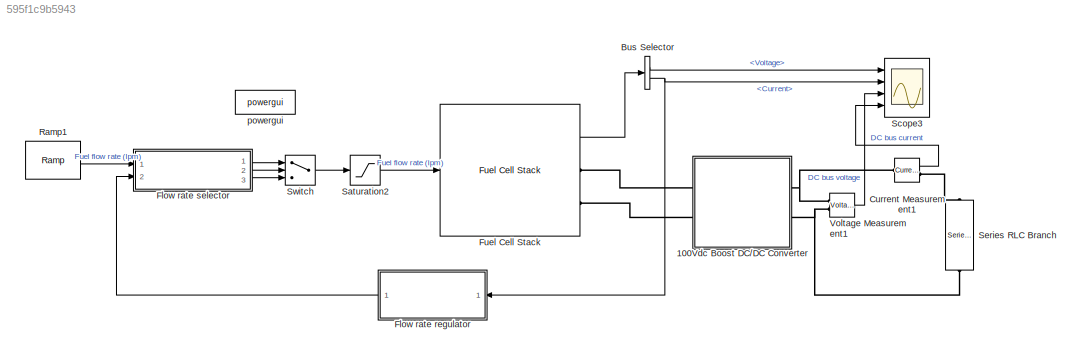
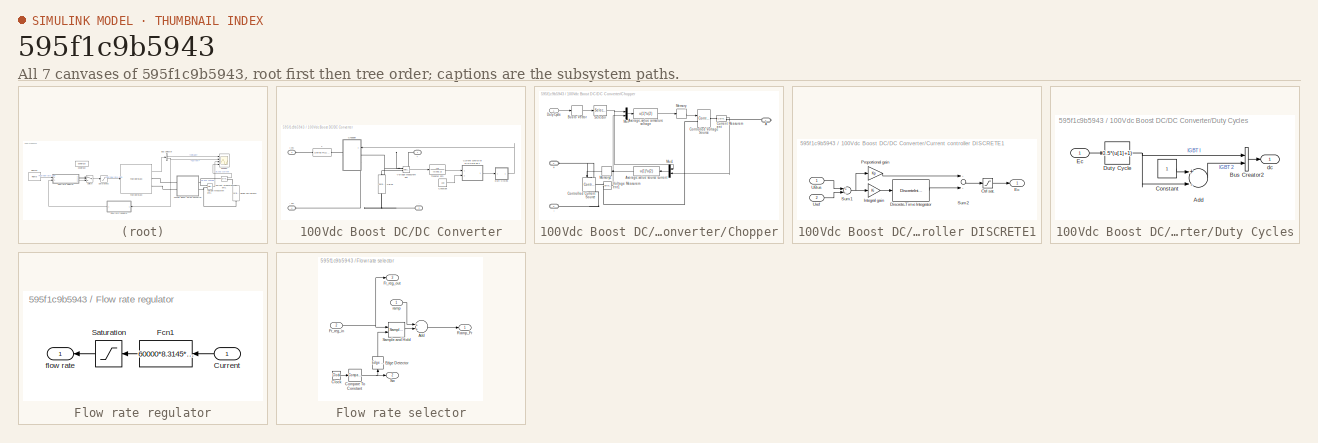
[diagram: thumbnail index - all 7 canvases of the model, root first then tree order]
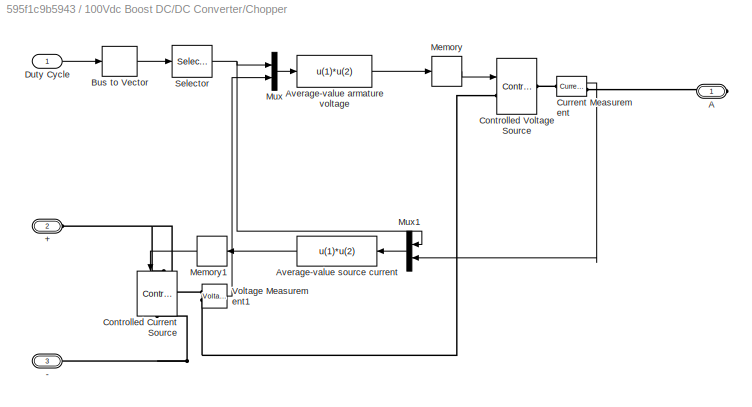
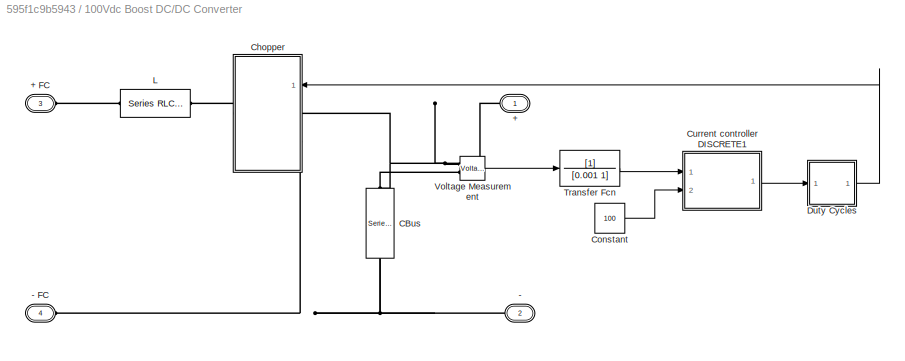
MODEL slx_595f1c9b5943
KIND model
CONFIG AbsTol = auto
CONFIG EnableMultiTasking = off
CONFIG FixedStep = auto
CONFIG MaxStep = auto
CONFIG MinStep = auto
CONFIG RelTol = 1e-3
CONFIG SampleTimeConstraint = Unconstrained
CONFIG Solver = VariableStepAuto
CONFIG SolverName = VariableStepAuto
CONFIG StartTime = 0.0
CONFIG StopTime = 10.0
BLOCK [SubSystem] 100Vdc Boost DC//DC Converter
  Ports = [0, 0, 0, 0, 0, 2, 2]
  RequestExecContextInheritance = off
BLOCK [PMIOPort] 100Vdc Boost DC//DC Converter/+
  Side = Right
  Tag = PMCPort
BLOCK [PMIOPort] 100Vdc Boost DC//DC Converter/+ FC
  Port = 3
  Side = Left
  Tag = PMCPort
BLOCK [PMIOPort] 100Vdc Boost DC//DC Converter/-
  Port = 2
  Side = Right
  Tag = PMCPort
BLOCK [PMIOPort] 100Vdc Boost DC//DC Converter/- FC
  Port = 4
  Side = Left
  Tag = PMCPort
BLOCK [Reference] 100Vdc Boost DC//DC Converter/CBus  REF=powerlib/Elements/Series RLC Branch
  Ports = [0, 0, 0, 0, 0, 1, 1]
  SourceBlock = powerlib/Elements/Series RLC Branch
  SourceProductBaseCode = PS
  SourceProductName = Simscape Power Systems
  SourceType = Series RLC Branch
BLOCK [SubSystem] 100Vdc Boost DC//DC Converter/Chopper
  Ports = [1, 0, 0, 0, 0, 2, 1]
  RequestExecContextInheritance = off
BLOCK [PMIOPort] 100Vdc Boost DC//DC Converter/Chopper/+
  Port = 2
  Side = Left
BLOCK [PMIOPort] 100Vdc Boost DC//DC Converter/Chopper/-
  Port = 3
  Side = Left
BLOCK [PMIOPort] 100Vdc Boost DC//DC Converter/Chopper/A
  Side = Right
BLOCK [Fcn] 100Vdc Boost DC//DC Converter/Chopper/Average-value armature voltage
  Expr = u(1)*u(2)
BLOCK [Fcn] 100Vdc Boost DC//DC Converter/Chopper/Average-value source current
  Expr = u(1)*u(2)
BLOCK [BusToVector] 100Vdc Boost DC//DC Converter/Chopper/Bus to Vector
BLOCK [Reference] 100Vdc Boost DC//DC Converter/Chopper/Controlled Current Source  REF=powerlib/Electrical
Sources/Controlled Current Source
  Ports = [1, 0, 0, 0, 0, 1, 1]
  SourceBlock = powerlib/Electrical\nSources/Controlled Current Source
  SourceProductBaseCode = PS
  SourceProductName = Simscape Power Systems
  SourceType = Controlled Current Source
BLOCK [Reference] 100Vdc Boost DC//DC Converter/Chopper/Controlled Voltage Source  REF=powerlib/Electrical
Sources/Controlled Voltage Source
  Ports = [1, 0, 0, 0, 0, 1, 1]
  SourceBlock = powerlib/Electrical\nSources/Controlled Voltage Source
  SourceProductBaseCode = PS
  SourceProductName = Simscape Power Systems
  SourceType = Controlled Voltage Source
BLOCK [Reference] 100Vdc Boost DC//DC Converter/Chopper/Current Measurement  REF=powerlib/Measurements/Current Measurement
  AttributesFormatString = \n
  Ports = [0, 1, 0, 0, 0, 1, 1]
  SourceBlock = powerlib/Measurements/Current Measurement
  SourceProductBaseCode = PS
  SourceProductName = Simscape Power Systems
  SourceType = Current Measurement
  Tag = PoWeRsYsTeMmEaSuReMeNt
BLOCK [Inport] 100Vdc Boost DC//DC Converter/Chopper/Duty Cycle
  IconDisplay = Port number
BLOCK [Memory] 100Vdc Boost DC//DC Converter/Chopper/Memory
BLOCK [Memory] 100Vdc Boost DC//DC Converter/Chopper/Memory1
BLOCK [Mux] 100Vdc Boost DC//DC Converter/Chopper/Mux
  DisplayOption = bar
  Inputs = 2
  Ports = [2, 1]
BLOCK [Mux] 100Vdc Boost DC//DC Converter/Chopper/Mux1
  DisplayOption = bar
  Inputs = 2
  Ports = [2, 1]
BLOCK [Selector] 100Vdc Boost DC//DC Converter/Chopper/Selector
  IndexOptions = Index vector (dialog)
  Indices = [1]
  InputPortWidth = 2
  OutputSizes = 1
  Ports = [1, 1]
BLOCK [Reference] 100Vdc Boost DC//DC Converter/Chopper/Voltage Measurement1  REF=powerlib/Measurements/Voltage Measurement
  AttributesFormatString = \n
  Ports = [0, 1, 0, 0, 0, 2]
  SourceBlock = powerlib/Measurements/Voltage Measurement
  SourceProductBaseCode = PS
  SourceProductName = Simscape Power Systems
  SourceType = Voltage Measurement
  Tag = PoWeRsYsTeMmEaSuReMeNt
BLOCK [Constant] 100Vdc Boost DC//DC Converter/Constant
  Value = 100
BLOCK [SubSystem] 100Vdc Boost DC//DC Converter/Current controller DISCRETE1
  Ports = [2, 1]
  RequestExecContextInheritance = off
BLOCK [Saturate] 100Vdc Boost DC//DC Converter/Current controller DISCRETE1/Ctrl sat.
  InputPortMap = u0
  LowerLimit = -0.95
  Ports = [1, 1]
  UpperLimit = 0.95
BLOCK [DiscreteIntegrator] 100Vdc Boost DC//DC Converter/Current controller DISCRETE1/Discrete-Time Integrator
  ICPrevOutput = DiscIntNeverNeededParam
  ICPrevScaledInput = DiscIntNeverNeededParam
  IntegratorMethod = Integration: Trapezoidal
  LimitOutput = on
  LowerSaturationLimit = -0.95
  Ports = [1, 1]
  SampleTime = Ts
  UpperSaturationLimit = 0.95
BLOCK [Outport] 100Vdc Boost DC//DC Converter/Current controller DISCRETE1/Ec
  IconDisplay = Port number
  InitialOutput = 0
BLOCK [Gain] 100Vdc Boost DC//DC Converter/Current controller DISCRETE1/Integral gain
  Gain = Ki
BLOCK [Gain] 100Vdc Boost DC//DC Converter/Current controller DISCRETE1/Proportional gain
  Gain = Kp
BLOCK [Sum] 100Vdc Boost DC//DC Converter/Current controller DISCRETE1/Sum1
  Inputs = +-
  Ports = [2, 1]
BLOCK [Sum] 100Vdc Boost DC//DC Converter/Current controller DISCRETE1/Sum2
  Ports = [2, 1]
BLOCK [Inport] 100Vdc Boost DC//DC Converter/Current controller DISCRETE1/UBus
  IconDisplay = Port number
BLOCK [Inport] 100Vdc Boost DC//DC Converter/Current controller DISCRETE1/Uref
  IconDisplay = Port number
  Port = 2
BLOCK [SubSystem] 100Vdc Boost DC//DC Converter/Duty Cycles
  Ports = [1, 1]
  RequestExecContextInheritance = off
BLOCK [Sum] 100Vdc Boost DC//DC Converter/Duty Cycles/Add
  InputSameDT = off
  Inputs = +-
  OutDataTypeStr = Inherit: Inherit via internal rule
  Ports = [2, 1]
  SaturateOnIntegerOverflow = off
BLOCK [BusCreator] 100Vdc Boost DC//DC Converter/Duty Cycles/Bus Creator2
  DisplayOption = bar
  InheritFromInputs = on
  Inputs = 2
  Ports = [2, 1]
BLOCK [Constant] 100Vdc Boost DC//DC Converter/Duty Cycles/Constant
BLOCK [Fcn] 100Vdc Boost DC//DC Converter/Duty Cycles/Duty Cycle
  Expr = 0.5*(u[1]+1)
BLOCK [Inport] 100Vdc Boost DC//DC Converter/Duty Cycles/Ec
  IconDisplay = Port number
BLOCK [Outport] 100Vdc Boost DC//DC Converter/Duty Cycles/dc
  IconDisplay = Port number
BLOCK [Reference] 100Vdc Boost DC//DC Converter/L  REF=powerlib/Elements/Series RLC Branch
  Ports = [0, 0, 0, 0, 0, 1, 1]
  SourceBlock = powerlib/Elements/Series RLC Branch
  SourceProductBaseCode = PS
  SourceProductName = Simscape Power Systems
  SourceType = Series RLC Branch
BLOCK [TransferFcn] 100Vdc Boost DC//DC Converter/Transfer Fcn
  Denominator = [0.001 1]
BLOCK [Reference] 100Vdc Boost DC//DC Converter/Voltage Measurement  REF=powerlib/Measurements/Voltage Measurement
  Ports = [0, 1, 0, 0, 0, 2]
  SourceBlock = powerlib/Measurements/Voltage Measurement
  SourceProductBaseCode = PS
  SourceProductName = Simscape Power Systems
  SourceType = Voltage Measurement
BLOCK [BusSelector] Bus Selector
  OutputAsBus = off
  OutputSignals = Voltage,Current
  Ports = [1, 2]
BLOCK [Reference] Current Measurement1  REF=powerlib/Measurements/Current Measurement
  Ports = [0, 1, 0, 0, 0, 1, 1]
  SourceBlock = powerlib/Measurements/Current Measurement
  SourceProductBaseCode = PS
  SourceProductName = Simscape Power Systems
  SourceType = Current Measurement
BLOCK [SubSystem] Flow rate regulator
  Ports = [1, 1]
  RequestExecContextInheritance = off
BLOCK [Inport] Flow rate regulator/Current
  IconDisplay = Port number
BLOCK [Fcn] Flow rate regulator/Fcn1
  Expr = 60000*8.3145*(273+T)*Nc*u(1)/(2*96485*(Pf*101325)*Uf_H2/100*x/100)
BLOCK [Saturate] Flow rate regulator/Saturation
  InputPortMap = u0
  LowerLimit = 1
  Ports = [1, 1]
  UpperLimit = inf
BLOCK [Outport] Flow rate regulator/flow rate
  IconDisplay = Port number
BLOCK [SubSystem] Flow rate selector
  Ports = [2, 3]
  RequestExecContextInheritance = off
BLOCK [Sum] Flow rate selector/Add
  InputSameDT = off
  OutDataTypeStr = Inherit: Inherit via internal rule
  Ports = [2, 1]
  SaturateOnIntegerOverflow = off
BLOCK [Clock] Flow rate selector/Clock
  Decimation = 1
BLOCK [Reference] Flow rate selector/Compare To Constant  REF=simulink/Logic and Bit
Operations/Compare
To Constant
  Ports = [1, 1]
  SourceBlock = simulink/Logic and Bit\nOperations/Compare\nTo Constant
  SourceProductBaseCode = SL
  SourceProductName = Simulink
  SourceType = Compare To Constant
BLOCK [Reference] Flow rate selector/Edge Detector  REF=powerlib_meascontrol/Logic/Edge Detector
  Ports = [1, 1]
  SourceBlock = powerlib_meascontrol/Logic/Edge Detector
  SourceProductBaseCode = PS
  SourceProductName = Simscape Power Systems
  SourceType = Edge Detector
BLOCK [Inport] Flow rate selector/Fr_reg_in
  IconDisplay = Port number
  Port = 2
BLOCK [Outport] Flow rate selector/Fr_reg_out
  IconDisplay = Port number
  Port = 3
BLOCK [Outport] Flow rate selector/Ramp_Fr
  IconDisplay = Port number
BLOCK [Reference] Flow rate selector/Sample and Hold  REF=powerlib_meascontrol/Additional Components/Sample and
Hold
  Ports = [2, 1]
  SourceBlock = powerlib_meascontrol/Additional Components/Sample and\nHold
  SourceProductBaseCode = PS
  SourceProductName = Simscape Power Systems
  SourceType = Sample and Hold
BLOCK [Outport] Flow rate selector/Sw
  IconDisplay = Port number
  Port = 2
BLOCK [Inport] Flow rate selector/ramp
  IconDisplay = Port number
BLOCK [Reference] Fuel Cell Stack  REF=electricdrivelib/Extra Sources/Fuel Cell Stack
  Ports = [1, 1, 0, 0, 0, 0, 2]
  SourceBlock = electricdrivelib/Extra Sources/Fuel Cell Stack
  SourceProductBaseCode = PS
  SourceProductName = Simscape Power Systems
  SourceType = Fuel Cell Stack
BLOCK [Reference] Ramp1  REF=simulink/Sources/Ramp
  Ports = [0, 1]
  SourceBlock = simulink/Sources/Ramp
  SourceProductBaseCode = SL
  SourceProductName = Simulink
  SourceType = Ramp
BLOCK [Saturate] Saturation2
  InputPortMap = u0
  LowerLimit = 0
  Ports = [1, 1]
  UpperLimit = 85
BLOCK [Scope] Scope3
  Floating = off
  NumInputPorts = 4
  Ports = [4]
  ScopeSpecificationString = Simulink.scopes.TimeScopeBlockCfg('CurrentConfiguration', extmgr.ConfigurationSet(extmgr.Configuration('Core','General UI',true),extmgr.Configuration('Core','Source UI',true),extmgr.Configuration('Sources','WiredSimulink',true,'DataLoggingVariableName','ScopeData3'),extmgr.Configuration('Visuals','Time Domain',true,'SerializedDisplays',{struct('MinYLimReal','-16.66685','MaxYLimReal','150.00163','Y...<+3430ch>
BLOCK [Reference] Series RLC Branch  REF=powerlib/Elements/Series RLC Branch
  Ports = [0, 0, 0, 0, 0, 1, 1]
  SourceBlock = powerlib/Elements/Series RLC Branch
  SourceProductBaseCode = PS
  SourceProductName = Simscape Power Systems
  SourceType = Series RLC Branch
BLOCK [Switch] Switch
  Criteria = u2 > Threshold
  InputSameDT = off
  SaturateOnIntegerOverflow = off
BLOCK [Reference] Voltage Measurement1  REF=powerlib/Measurements/Voltage Measurement
  Ports = [0, 1, 0, 0, 0, 2]
  SourceBlock = powerlib/Measurements/Voltage Measurement
  SourceProductBaseCode = PS
  SourceProductName = Simscape Power Systems
  SourceType = Voltage Measurement
BLOCK [Reference] powergui  REF=powerlib/powergui
  Ports = []
  SourceBlock = powerlib/powergui
  SourceProductBaseCode = PS
  SourceProductName = Simscape Power Systems
  SourceType = PSB option menu block
LINE 100Vdc Boost DC//DC Converter/Chopper/Average-value armature voltage:1 -> 100Vdc Boost DC//DC Converter/Chopper/Memory:1
LINE 100Vdc Boost DC//DC Converter/Chopper/Average-value source current:1 -> 100Vdc Boost DC//DC Converter/Chopper/Memory1:1
LINE 100Vdc Boost DC//DC Converter/Chopper/Bus to Vector:1 -> 100Vdc Boost DC//DC Converter/Chopper/Selector:1
LINE 100Vdc Boost DC//DC Converter/Chopper/Current Measurement:1 -> 100Vdc Boost DC//DC Converter/Chopper/Mux1:2
LINE 100Vdc Boost DC//DC Converter/Chopper/Duty Cycle:1 -> 100Vdc Boost DC//DC Converter/Chopper/Bus to Vector:1
LINE 100Vdc Boost DC//DC Converter/Chopper/Memory1:1 -> 100Vdc Boost DC//DC Converter/Chopper/Controlled Current Source:1
LINE 100Vdc Boost DC//DC Converter/Chopper/Memory:1 -> 100Vdc Boost DC//DC Converter/Chopper/Controlled Voltage Source:1
LINE 100Vdc Boost DC//DC Converter/Chopper/Mux1:1 -> 100Vdc Boost DC//DC Converter/Chopper/Average-value source current:1
LINE 100Vdc Boost DC//DC Converter/Chopper/Mux:1 -> 100Vdc Boost DC//DC Converter/Chopper/Average-value armature voltage:1
NET 100Vdc Boost DC//DC Converter/Chopper/Selector:1 -> 100Vdc Boost DC//DC Converter/Chopper/Mux1:1, 100Vdc Boost DC//DC Converter/Chopper/Mux:1
LINE 100Vdc Boost DC//DC Converter/Chopper/Voltage Measurement1:1 -> 100Vdc Boost DC//DC Converter/Chopper/Mux:2
LINE 100Vdc Boost DC//DC Converter/Constant:1 -> 100Vdc Boost DC//DC Converter/Current controller DISCRETE1:2
LINE 100Vdc Boost DC//DC Converter/Current controller DISCRETE1/Ctrl sat.:1 -> 100Vdc Boost DC//DC Converter/Current controller DISCRETE1/Ec:1
LINE 100Vdc Boost DC//DC Converter/Current controller DISCRETE1/Discrete-Time Integrator:1 -> 100Vdc Boost DC//DC Converter/Current controller DISCRETE1/Sum2:2
LINE 100Vdc Boost DC//DC Converter/Current controller DISCRETE1/Integral gain:1 -> 100Vdc Boost DC//DC Converter/Current controller DISCRETE1/Discrete-Time Integrator:1
LINE 100Vdc Boost DC//DC Converter/Current controller DISCRETE1/Proportional gain:1 -> 100Vdc Boost DC//DC Converter/Current controller DISCRETE1/Sum2:1
NET 100Vdc Boost DC//DC Converter/Current controller DISCRETE1/Sum1:1 -> 100Vdc Boost DC//DC Converter/Current controller DISCRETE1/Integral gain:1, 100Vdc Boost DC//DC Converter/Current controller DISCRETE1/Proportional gain:1
LINE 100Vdc Boost DC//DC Converter/Current controller DISCRETE1/Sum2:1 -> 100Vdc Boost DC//DC Converter/Current controller DISCRETE1/Ctrl sat.:1
LINE 100Vdc Boost DC//DC Converter/Current controller DISCRETE1/UBus:1 -> 100Vdc Boost DC//DC Converter/Current controller DISCRETE1/Sum1:1
LINE 100Vdc Boost DC//DC Converter/Current controller DISCRETE1/Uref:1 -> 100Vdc Boost DC//DC Converter/Current controller DISCRETE1/Sum1:2
LINE 100Vdc Boost DC//DC Converter/Current controller DISCRETE1:1 -> 100Vdc Boost DC//DC Converter/Duty Cycles:1
LINE 100Vdc Boost DC//DC Converter/Duty Cycles/Add:1 -> 100Vdc Boost DC//DC Converter/Duty Cycles/Bus Creator2:2
LINE 100Vdc Boost DC//DC Converter/Duty Cycles/Bus Creator2:1 -> 100Vdc Boost DC//DC Converter/Duty Cycles/dc:1
LINE 100Vdc Boost DC//DC Converter/Duty Cycles/Constant:1 -> 100Vdc Boost DC//DC Converter/Duty Cycles/Add:1
NET 100Vdc Boost DC//DC Converter/Duty Cycles/Duty Cycle:1 -> 100Vdc Boost DC//DC Converter/Duty Cycles/Add:2, 100Vdc Boost DC//DC Converter/Duty Cycles/Bus Creator2:1
LINE 100Vdc Boost DC//DC Converter/Duty Cycles/Ec:1 -> 100Vdc Boost DC//DC Converter/Duty Cycles/Duty Cycle:1
LINE 100Vdc Boost DC//DC Converter/Duty Cycles:1 -> 100Vdc Boost DC//DC Converter/Chopper:1
LINE 100Vdc Boost DC//DC Converter/Transfer Fcn:1 -> 100Vdc Boost DC//DC Converter/Current controller DISCRETE1:1
LINE 100Vdc Boost DC//DC Converter/Voltage Measurement:1 -> 100Vdc Boost DC//DC Converter/Transfer Fcn:1
LINE Bus Selector:1 -> Scope3:1
NET Bus Selector:2 -> Flow rate regulator:1, Scope3:2
LINE Current Measurement1:1 -> Scope3:4
LINE Flow rate regulator/Current:1 -> Flow rate regulator/Fcn1:1
LINE Flow rate regulator/Fcn1:1 -> Flow rate regulator/Saturation:1
LINE Flow rate regulator/Saturation:1 -> Flow rate regulator/flow rate:1
LINE Flow rate regulator:1 -> Flow rate selector:2
LINE Flow rate selector/Add:1 -> Flow rate selector/Ramp_Fr:1
LINE Flow rate selector/Clock:1 -> Flow rate selector/Compare To Constant:1
NET Flow rate selector/Compare To Constant:1 -> Flow rate selector/Edge Detector:1, Flow rate selector/Sw:1
LINE Flow rate selector/Edge Detector:1 -> Flow rate selector/Sample and Hold:2
NET Flow rate selector/Fr_reg_in:1 -> Flow rate selector/Fr_reg_out:1, Flow rate selector/Sample and Hold:1
LINE Flow rate selector/Sample and Hold:1 -> Flow rate selector/Add:2
LINE Flow rate selector/ramp:1 -> Flow rate selector/Add:1
LINE Flow rate selector:1 -> Switch:1
LINE Flow rate selector:2 -> Switch:2
LINE Flow rate selector:3 -> Switch:3
LINE Fuel Cell Stack:1 -> Bus Selector:1
LINE Ramp1:1 -> Flow rate selector:1
LINE Saturation2:1 -> Fuel Cell Stack:1
LINE Switch:1 -> Saturation2:1
LINE Voltage Measurement1:1 -> Scope3:3
PLINE 100Vdc Boost DC//DC Converter/+ FC:RConn1 -- 100Vdc Boost DC//DC Converter/L:RConn1
PNET net1: 100Vdc Boost DC//DC Converter/+:RConn1 -- 100Vdc Boost DC//DC Converter/CBus:LConn1 -- 100Vdc Boost DC//DC Converter/Chopper:LConn1 -- 100Vdc Boost DC//DC Converter/Voltage Measurement:LConn1
PNET net2: 100Vdc Boost DC//DC Converter/- FC:RConn1 -- 100Vdc Boost DC//DC Converter/-:RConn1 -- 100Vdc Boost DC//DC Converter/CBus:RConn1 -- 100Vdc Boost DC//DC Converter/Chopper:LConn2 -- 100Vdc Boost DC//DC Converter/Voltage Measurement:LConn2
PNET net3: 100Vdc Boost DC//DC Converter/Chopper/+:RConn1 -- 100Vdc Boost DC//DC Converter/Chopper/Controlled Current Source:LConn1 -- 100Vdc Boost DC//DC Converter/Chopper/Voltage Measurement1:LConn1
PNET net4: 100Vdc Boost DC//DC Converter/Chopper/-:RConn1 -- 100Vdc Boost DC//DC Converter/Chopper/Controlled Current Source:RConn1 -- 100Vdc Boost DC//DC Converter/Chopper/Controlled Voltage Source:LConn1 -- 100Vdc Boost DC//DC Converter/Chopper/Voltage Measurement1:LConn2
PLINE 100Vdc Boost DC//DC Converter/Chopper/A:RConn1 -- 100Vdc Boost DC//DC Converter/Chopper/Current Measurement:RConn1
PLINE 100Vdc Boost DC//DC Converter/Chopper/Controlled Voltage Source:RConn1 -- 100Vdc Boost DC//DC Converter/Chopper/Current Measurement:LConn1
PLINE 100Vdc Boost DC//DC Converter/Chopper:RConn1 -- 100Vdc Boost DC//DC Converter/L:LConn1
PLINE 100Vdc Boost DC//DC Converter:LConn1 -- Fuel Cell Stack:RConn1
PLINE 100Vdc Boost DC//DC Converter:LConn2 -- Fuel Cell Stack:RConn2
PNET net5: 100Vdc Boost DC//DC Converter:RConn1 -- Current Measurement1:LConn1 -- Voltage Measurement1:LConn1
PNET net6: 100Vdc Boost DC//DC Converter:RConn2 -- Series RLC Branch:RConn1 -- Voltage Measurement1:LConn2
PLINE Current Measurement1:RConn1 -- Series RLC Branch:LConn1
note: NET lines group one-source signal fan-out (src -> all destinations, sorted); 1:1 wires keep LINE; PNET lines group multi-terminal physical nets as a canonical sorted terminal list (undirected conserving connections); 2-terminal nets keep the pairwise PLINE form
